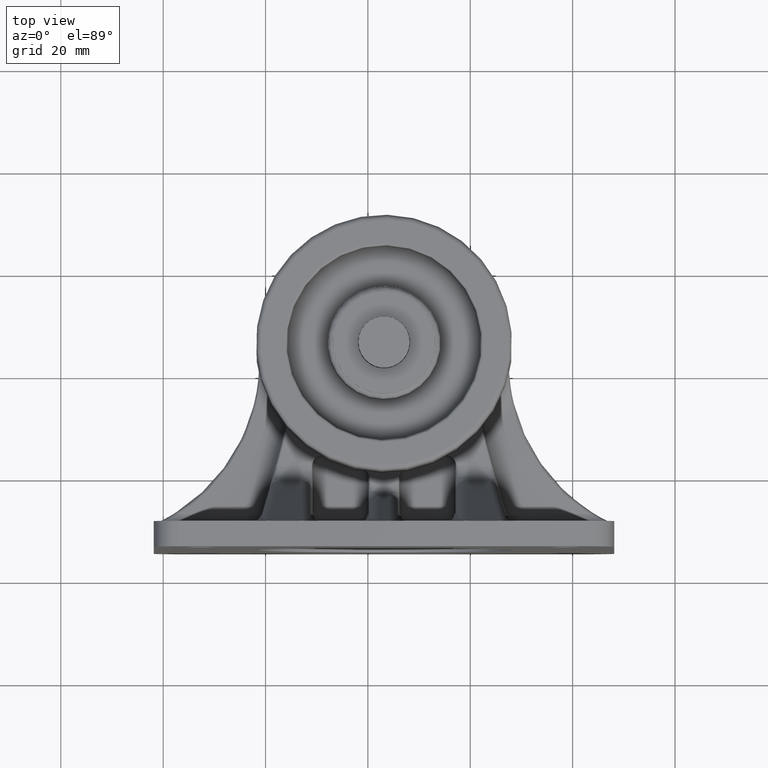
[diagram: clean part render]
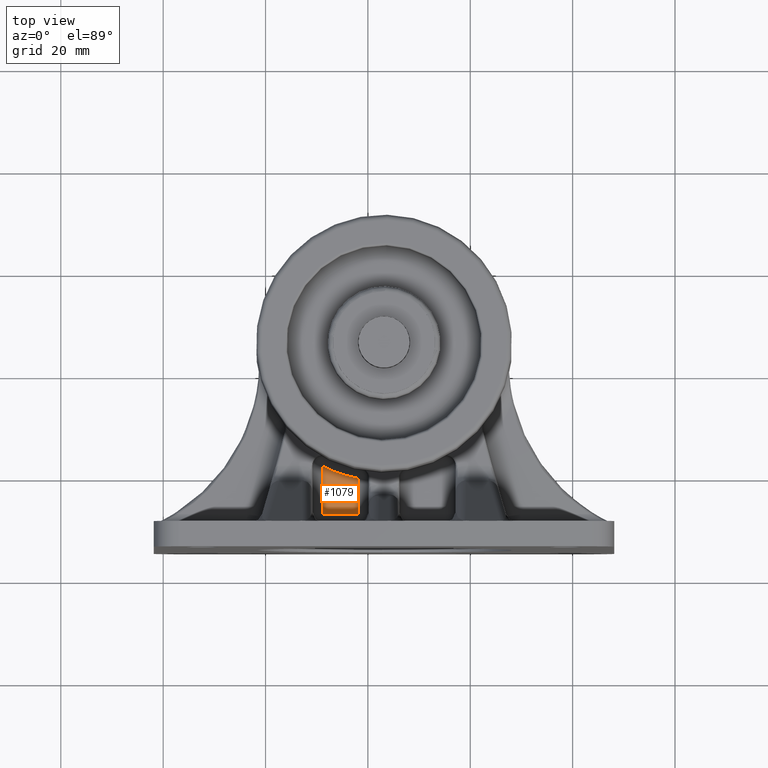
[diagram: same view with one face highlighted and labeled with its STEP entity id]
A machine part, top view. The second image highlights one B-rep face of the part: STEP entity #1079.
In plain terms, the highlighted planar face has unit normal (0, 0, 1).
Its self-contained STEP definition (entity closure, byte-faithful):
#304 = VECTOR ( 'NONE', #14005, 1000.000000000000000 ) ;
#797 = LINE ( 'NONE', #2930, #14398 ) ;
#986 = EDGE_CURVE ( 'NONE', #16928, #8995, #797, .T. ) ;
#1079 = ADVANCED_FACE ( 'NONE', ( #5951 ), #15800, .T. ) ;
#1215 = CARTESIAN_POINT ( 'NONE',  ( -4.000000000000000000, -33.00000000000000000, -49.99999999999999300 ) ) ;
#1962 = ORIENTED_EDGE ( 'NONE', *, *, #12899, .T. ) ;
#2169 = DIRECTION ( 'NONE',  ( 0.0000000000000000000, 3.552713678800500900E-015, 1.000000000000000000 ) ) ;
#2507 = EDGE_LOOP ( 'NONE', ( #14128, #12750, #13743, #1962 ) ) ;
#2684 = EDGE_CURVE ( 'NONE', #14539, #6543, #13895, .T. ) ;
#2930 = CARTESIAN_POINT ( 'NONE',  ( -4.000000000000000000, -33.00000000000000000, -45.00000000000000000 ) ) ;
#3081 = AXIS2_PLACEMENT_3D ( 'NONE', #7084, #7046, #2169 ) ;
#4949 = EDGE_CURVE ( 'NONE', #8995, #14539, #14267, .T. ) ;
#5951 = FACE_OUTER_BOUND ( 'NONE', #2507, .T. ) ;
#6543 = VERTEX_POINT ( 'NONE', #6700 ) ;
#6700 = CARTESIAN_POINT ( 'NONE',  ( -4.000000000000000000, -23.62731470142134800, -56.99999999999999300 ) ) ;
#7046 = DIRECTION ( 'NONE',  ( 1.000000000000000000, -0.0000000000000000000, -0.0000000000000000000 ) ) ;
#7074 = CARTESIAN_POINT ( 'NONE',  ( -4.000000000000000000, 0.0000000000000000000, -45.00000000000000000 ) ) ;
#7084 = CARTESIAN_POINT ( 'NONE',  ( -4.000000000000000000, 0.0000000000000000000, -45.00000000000000000 ) ) ;
#8995 = VERTEX_POINT ( 'NONE', #1215 ) ;
#9276 = LINE ( 'NONE', #13656, #16913 ) ;
#12750 = ORIENTED_EDGE ( 'NONE', *, *, #4949, .T. ) ;
#12899 = EDGE_CURVE ( 'NONE', #6543, #16928, #9276, .T. ) ;
#13439 = CARTESIAN_POINT ( 'NONE',  ( -4.000000000000000000, 1.217706754619583900E-015, -49.99999999999999300 ) ) ;
#13656 = CARTESIAN_POINT ( 'NONE',  ( -4.000000000000000000, -4.192957986821894500E-015, -56.99999999999999300 ) ) ;
#13743 = ORIENTED_EDGE ( 'NONE', *, *, #2684, .T. ) ;
#13895 = CIRCLE ( 'NONE', #3081, 26.50000000000000000 ) ;
#14005 = DIRECTION ( 'NONE',  ( 0.0000000000000000000, 1.000000000000000000, 2.435413509239170100E-016 ) ) ;
#14128 = ORIENTED_EDGE ( 'NONE', *, *, #986, .T. ) ;
#14267 = LINE ( 'NONE', #13439, #304 ) ;
#14398 = VECTOR ( 'NONE', #16171, 1000.000000000000000 ) ;
#14539 = VERTEX_POINT ( 'NONE', #16684 ) ;
#14633 = AXIS2_PLACEMENT_3D ( 'NONE', #7074, #14864, #14665 ) ;
#14665 = DIRECTION ( 'NONE',  ( 0.0000000000000000000, 0.0000000000000000000, 1.000000000000000000 ) ) ;
#14864 = DIRECTION ( 'NONE',  ( -1.000000000000000000, 0.0000000000000000000, 0.0000000000000000000 ) ) ;
#15564 = CARTESIAN_POINT ( 'NONE',  ( -4.000000000000000000, -33.00000000000000000, -56.99999999999999300 ) ) ;
#15800 = PLANE ( 'NONE',  #14633 ) ;
#16171 = DIRECTION ( 'NONE',  ( 0.0000000000000000000, 0.0000000000000000000, 1.000000000000000000 ) ) ;
#16354 = DIRECTION ( 'NONE',  ( -0.0000000000000000000, -1.000000000000000000, 3.494131655684910000E-016 ) ) ;
#16684 = CARTESIAN_POINT ( 'NONE',  ( -4.000000000000000000, -26.02402735934619900, -49.99999999999999300 ) ) ;
#16913 = VECTOR ( 'NONE', #16354, 1000.000000000000000 ) ;
#16928 = VERTEX_POINT ( 'NONE', #15564 ) ;